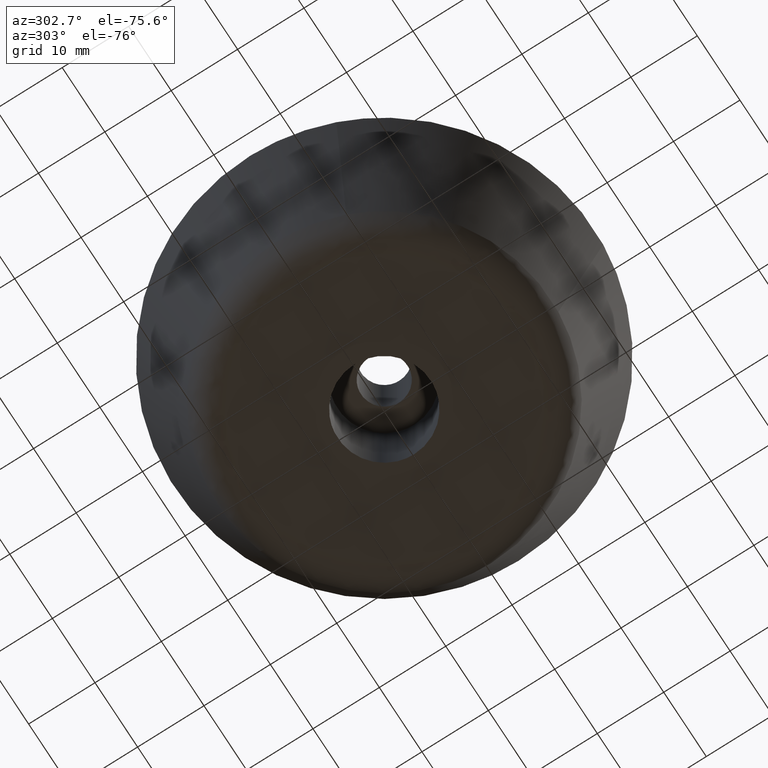
[diagram: clean part render]
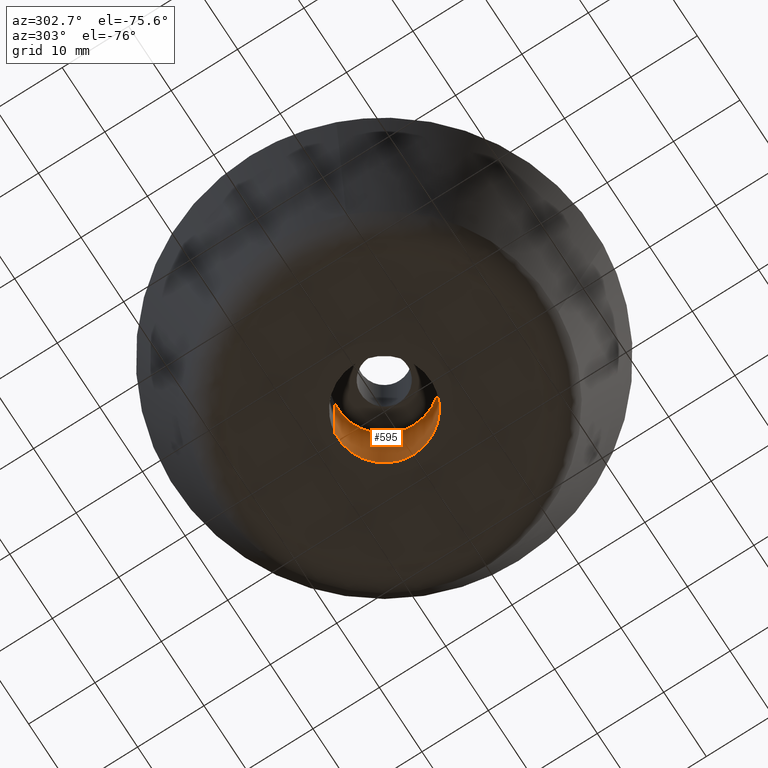
[diagram: same view with one face highlighted and labeled with its STEP entity id]
A machine part, auxiliary view. The second image highlights one B-rep face of the part: STEP entity #595.
In plain terms, the highlighted face is a freeform B-spline surface patch.
Its self-contained STEP definition (entity closure, byte-faithful):
#493=CARTESIAN_POINT('',(-0.826239642597309,6.951066684545665,15.375000000000005));
#494=CARTESIAN_POINT('',(-0.627303100465844,6.974713308140240,15.375000000000004));
#495=CARTESIAN_POINT('',(-0.427339776743999,6.986943588953067,15.375000000000000));
#496=CARTESIAN_POINT('',(6.559603812209068,7.414283365697066,15.375000000000002));
#497=CARTESIAN_POINT('',(6.986943588953067,0.427339776743999,15.375000000000000));
#498=CARTESIAN_POINT('',(7.414283365697066,-6.559603812209068,15.375000000000002));
#499=CARTESIAN_POINT('',(0.427339776743999,-6.986943588953067,15.375000000000000));
#500=CARTESIAN_POINT('',(-0.826239642597309,6.951066684545665,-0.384375000000001));
#501=CARTESIAN_POINT('',(-0.627303100465844,6.974713308140240,-0.384375000000000));
#502=CARTESIAN_POINT('',(-0.427339776743999,6.986943588953067,-0.384375000000000));
#503=CARTESIAN_POINT('',(6.559603812209068,7.414283365697066,-0.384375000000000));
#504=CARTESIAN_POINT('',(6.986943588953067,0.427339776743999,-0.384375000000000));
#505=CARTESIAN_POINT('',(7.414283365697066,-6.559603812209068,-0.384375000000000));
#506=CARTESIAN_POINT('',(0.427339776743999,-6.986943588953067,-0.384375000000000));
#514=(BOUNDED_SURFACE()B_SPLINE_SURFACE(2,1,((#493,#500),(#494,#501),(#495,#502),(#496,#503),(#497,#504),(#498,#505),(#499,#506)),.UNSPECIFIED.,.F.,.F.,.U.)B_SPLINE_SURFACE_WITH_KNOTS((3,2,2,3),(2,2),(0.0,0.463919189857867,12.061898936304530,23.659878682751181),(0.0,15.759375000000009),.UNSPECIFIED.)GEOMETRIC_REPRESENTATION_ITEM()RATIONAL_B_SPLINE_SURFACE(((0.977505800795127,0.977505800795127),(0.988284271247462,0.988284271247462),(1.0,1.0),(0.707106781186548,0.707106781186548),(1.0,1.0),(0.707106781186548,0.707106781186548),(1.0,1.0)))REPRESENTATION_ITEM('')SURFACE());
#515=CARTESIAN_POINT('',(-0.826232731308988,6.951067506050077,4.290376E-014));
#516=VERTEX_POINT('',#515);
#517=CARTESIAN_POINT('',(7.0,0.0,0.0));
#518=VERTEX_POINT('',#517);
#519=CARTESIAN_POINT('',(-0.826232731308988,6.951067506050077,4.290376E-014));
#520=CARTESIAN_POINT('',(-0.414565345387096,7.000000000000002,0.0));
#521=CARTESIAN_POINT('',(0.0,7.0,0.0));
#522=CARTESIAN_POINT('',(6.999999999999999,6.999999999999999,0.0));
#523=CARTESIAN_POINT('',(7.0,0.0,0.0));
#531=(BOUNDED_CURVE()B_SPLINE_CURVE(2,(#519,#520,#521,#522,#523),.UNSPECIFIED.,.F.,.U.)B_SPLINE_CURVE_WITH_KNOTS((3,2,3),(0.229562641551761,0.250000000000000,0.500000000000000),.UNSPECIFIED.)CURVE()GEOMETRIC_REPRESENTATION_ITEM()RATIONAL_B_SPLINE_CURVE((0.956027083545816,0.976056145200204,1.0,0.707106781186547,1.0))REPRESENTATION_ITEM(''));
#532=EDGE_CURVE('',#516,#518,#531,.T.);
#533=ORIENTED_EDGE('',*,*,#532,.T.);
#534=CARTESIAN_POINT('',(0.427339776795248,-6.986943588949934,-8.604228E-016));
#535=VERTEX_POINT('',#534);
#536=CARTESIAN_POINT('',(7.0,0.0,0.0));
#537=CARTESIAN_POINT('',(7.0,-6.584942468243120,0.0));
#538=CARTESIAN_POINT('',(0.427339776795248,-6.986943588949934,-8.604228E-016));
#546=(BOUNDED_CURVE()B_SPLINE_CURVE(2,(#536,#537,#538),.UNSPECIFIED.,.F.,.U.)B_SPLINE_CURVE_WITH_KNOTS((3,3),(0.500000000000000,0.739332962239438),.UNSPECIFIED.)CURVE()GEOMETRIC_REPRESENTATION_ITEM()RATIONAL_B_SPLINE_CURVE((1.0,0.719603993286130,0.976072041667779))REPRESENTATION_ITEM(''));
#547=EDGE_CURVE('',#518,#535,#546,.T.);
#548=ORIENTED_EDGE('',*,*,#547,.T.);
#549=CARTESIAN_POINT('',(0.427339776795251,-6.986943588949934,15.0));
#550=VERTEX_POINT('',#549);
#551=CARTESIAN_POINT('',(0.427339776795251,-6.986943588949934,15.0));
#552=CARTESIAN_POINT('',(0.427339776795248,-6.986943588949934,-8.604228E-016));
#553=QUASI_UNIFORM_CURVE('',1,(#551,#552),.UNSPECIFIED.,.F.,.U.);
#554=EDGE_CURVE('',#550,#535,#553,.T.);
#555=ORIENTED_EDGE('',*,*,#554,.F.);
#556=CARTESIAN_POINT('',(7.0,0.0,15.0));
#557=VERTEX_POINT('',#556);
#558=CARTESIAN_POINT('',(7.0,0.0,15.0));
#559=CARTESIAN_POINT('',(6.999999999999999,-6.584942468243034,14.999999999999998));
#560=CARTESIAN_POINT('',(0.427339776795251,-6.986943588949935,14.999999999999998));
#568=(BOUNDED_CURVE()B_SPLINE_CURVE(2,(#558,#559,#560),.UNSPECIFIED.,.F.,.U.)B_SPLINE_CURVE_WITH_KNOTS((3,3),(0.500000000000000,0.739332962239436),.UNSPECIFIED.)CURVE()GEOMETRIC_REPRESENTATION_ITEM()RATIONAL_B_SPLINE_CURVE((1.0,0.719603993286133,0.976072041667774))REPRESENTATION_ITEM(''));
#569=EDGE_CURVE('',#557,#550,#568,.T.);
#570=ORIENTED_EDGE('',*,*,#569,.F.);
#571=CARTESIAN_POINT('',(-0.826232816437603,6.951067495931421,15.0));
#572=VERTEX_POINT('',#571);
#573=CARTESIAN_POINT('',(-0.826232816437603,6.951067495931421,14.999999999999996));
#574=CARTESIAN_POINT('',(-0.414565388401376,6.999999999999999,14.999999999999996));
#575=CARTESIAN_POINT('',(0.0,7.0,15.0));
#576=CARTESIAN_POINT('',(6.999999999999999,6.999999999999999,14.999999999999996));
#577=CARTESIAN_POINT('',(7.0,0.0,15.0));
#585=(BOUNDED_CURVE()B_SPLINE_CURVE(2,(#573,#574,#575,#576,#577),.UNSPECIFIED.,.F.,.U.)B_SPLINE_CURVE_WITH_KNOTS((3,2,3),(0.229562639482005,0.250000000000000,0.500000000000000),.UNSPECIFIED.)CURVE()GEOMETRIC_REPRESENTATION_ITEM()RATIONAL_B_SPLINE_CURVE((0.956027079489002,0.976056142775333,1.0,0.707106781186547,1.0))REPRESENTATION_ITEM(''));
#586=EDGE_CURVE('',#572,#557,#585,.T.);
#587=ORIENTED_EDGE('',*,*,#586,.F.);
#588=CARTESIAN_POINT('',(-0.826232816437603,6.951067495931421,15.0));
#589=CARTESIAN_POINT('',(-0.826232731308988,6.951067506050077,4.290376E-014));
#590=QUASI_UNIFORM_CURVE('',1,(#588,#589),.UNSPECIFIED.,.F.,.U.);
#591=EDGE_CURVE('',#572,#516,#590,.T.);
#592=ORIENTED_EDGE('',*,*,#591,.T.);
#593=EDGE_LOOP('',(#533,#548,#555,#570,#587,#592));
#594=FACE_OUTER_BOUND('',#593,.T.);
#595=ADVANCED_FACE('',(#594),#514,.F.);